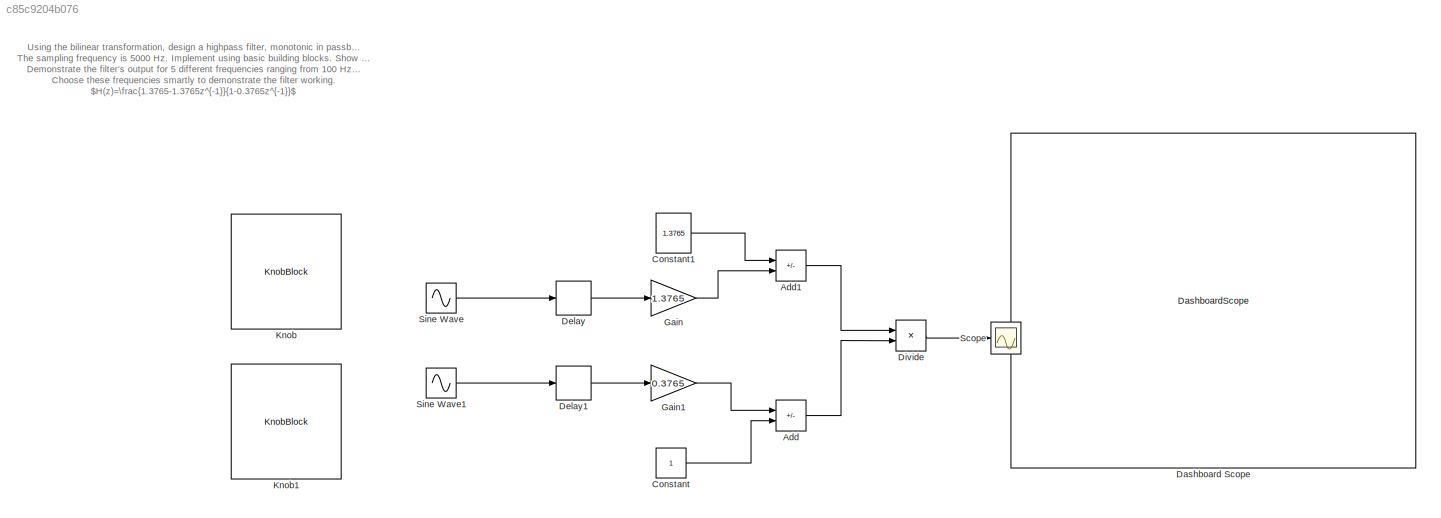
MODEL slx_c85c9204b076
KIND model
CONFIG AbsTol = auto
CONFIG EnableMultiTasking = off
CONFIG FixedStep = auto
CONFIG MaxStep = auto
CONFIG MinStep = auto
CONFIG RelTol = 1e-3
CONFIG SampleTimeConstraint = Unconstrained
CONFIG Solver = VariableStepAuto
CONFIG SolverName = VariableStepAuto
CONFIG StartTime = 0.0
CONFIG StopTime = 10.0
BLOCK [Sum] Add
  IconShape = rectangular
  Inputs = -+
  Ports = [2, 1]
BLOCK [Sum] Add1
  IconShape = rectangular
  Inputs = +-
  Ports = [2, 1]
BLOCK [Constant] Constant
BLOCK [Constant] Constant1
  Value = 1.3765
BLOCK [DashboardScope] Dashboard Scope
BLOCK [Delay] Delay
  DelayLength = 1
  InputPortMap = u0
  Ports = [1, 1]
BLOCK [Delay] Delay1
  DelayLength = 1
  InputPortMap = u0
  Ports = [1, 1]
BLOCK [Product] Divide
  Inputs = */
  Ports = [2, 1]
BLOCK [Gain] Gain
  Gain = 1.3765
BLOCK [Gain] Gain1
  Gain = 0.3765
BLOCK [KnobBlock] Knob
  ScaleMax = 10000
  ScaleMin = 100
BLOCK [KnobBlock] Knob1
  ScaleMax = 10000
  ScaleMin = 100
BLOCK [Scope] Scope
  Floating = off
  NumInputPorts = 1
  Ports = [1]
  ScopeSpecificationString = Simulink.scopes.TimeScopeBlockCfg('CurrentConfiguration', extmgr.ConfigurationSet(extmgr.Configuration('Core','General UI',true),extmgr.Configuration('Core','Source UI',true),extmgr.Configuration('Sources','WiredSimulink',true),extmgr.Configuration('Visuals','Time Domain',true,'SerializedDisplays',{struct('MinYLimReal','-2.05143','MaxYLimReal','3.56127','YLabelReal','','MinYLimMag','0.00000','MaxY...<+1398ch>
BLOCK [Sin] Sine Wave
  Amplitude = 2
  Frequency = 6133.257125854492
  Ports = [0, 1]
  SampleTime = 0
BLOCK [Sin] Sine Wave1
  Frequency = 5996.515289306641
  Ports = [0, 1]
  SampleTime = 0
ANNOTATION (root): Using the bilinear transformation, design a highpass filter, monotonic in passband with cutoff frequency of 1000 Hz and down 10 dB at 350 Hz. The sampling frequency is 5000 Hz. Implement using basic building blocks. Show the derivation for this filter. Demonstrate the filter’s output for 5 different frequencies ranging from 100 Hz to 10000 Hz. Choose these frequencies smartly to demonstrate the fi...<+63ch>
LINE Add1:1 -> Divide:1
LINE Add:1 -> Divide:2
LINE Constant1:1 -> Add1:1
LINE Constant:1 -> Add:2
LINE Delay1:1 -> Gain1:1
LINE Delay:1 -> Gain:1
LINE Divide:1 -> Scope:1
LINE Gain1:1 -> Add:1
LINE Gain:1 -> Add1:2
LINE Sine Wave1:1 -> Delay1:1
LINE Sine Wave:1 -> Delay:1
